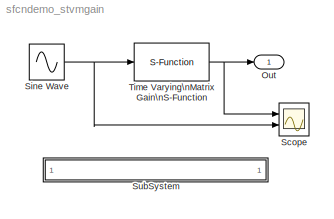
MODEL sfcndemo_stvmgain
KIND model
BLOCK [Outport] Out
  IconDisplay = Port number
  InitialOutput = 0
BLOCK [Scope] Scope
  DataFormat = StructureWithTime
  NumInputPorts = 2
  Ports = [2]
  TimeRange = 4
  YMax = 200~10
  YMin = 0~-10
BLOCK [Sin] Sine Wave
  Amplitude = [1:10 ]
  Ports = [0, 1]
  SampleTime = 0
BLOCK [SubSystem] SubSystem
  MaskDisplay = disp('matlabroot<path>');
  MaskIconFrame = on
  MaskIconOpaque = on
  MaskIconRotate = none
  MaskIconUnits = autoscale
  MinAlgLoopOccurrences = off
  OpenFcn = edit(fullfile(matlabroot,'simulink','src','stvmgain.c'))
  Ports = []
  PropExecContextAcrossSSBoundary = on
  RTWSystemCode = Auto
  TreatAsAtomicUnit = off
BLOCK [S-Function] Time Varying\nMatrix Gain\nS-Function
  FunctionName = stvmgain
  MaskCallbackString = |
  MaskDescription = This is a S-function block which calculates time- varying matrix gain function.
  MaskEnableString = on,on
  MaskIconFrame = on
  MaskIconOpaque = on
  MaskIconRotate = none
  MaskIconUnits = autoscale
  MaskPromptString = Input vector:|Sample Time:
  MaskStyleString = edit,edit
  MaskTabNameString = ,
  MaskToolTipString = on,on
  MaskTunableValueString = on,on
  MaskType = S-function: stvmgain
  MaskValueString = [1.0 1.25 1.5 1.75 2.0]|0.1
  MaskVarAliasString = ,
  MaskVariables = vec=@1;ts=@2;
  MaskVisibilityString = on,on
  Parameters = vec, ts
  Ports = [1, 1]
NET Sine Wave:1 -> Scope:2, Time Varying\nMatrix Gain\nS-Function:1
NET Time Varying\nMatrix Gain\nS-Function:1 -> Out:1, Scope:1
note: NET lines group one-source signal fan-out (src -> all destinations, sorted); 1:1 wires keep LINE
note: 1 file-system path scrubbed to <path> (not preserved elsewhere — flat text is the only slx artifact)
